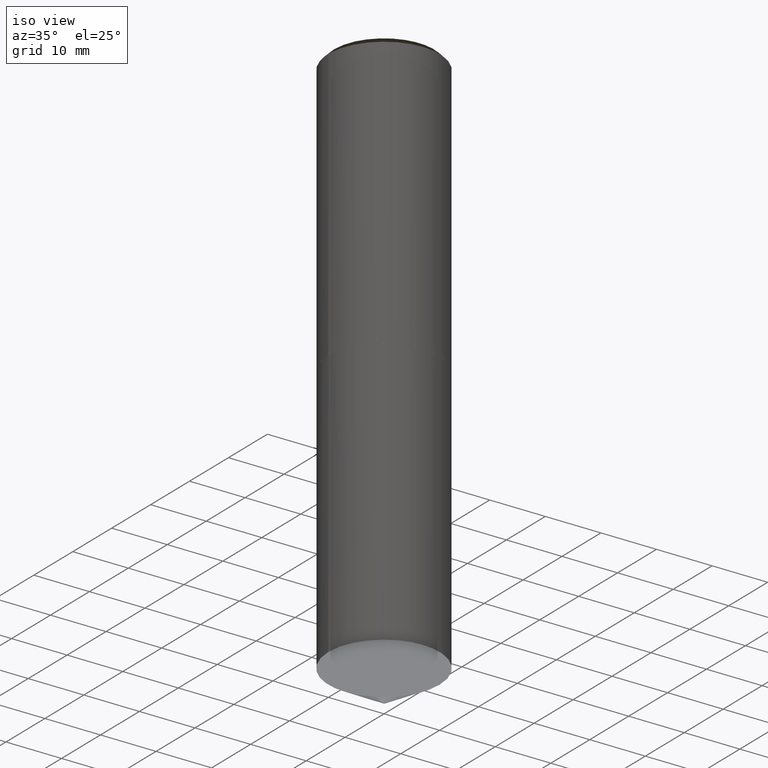
[diagram: clean part render]
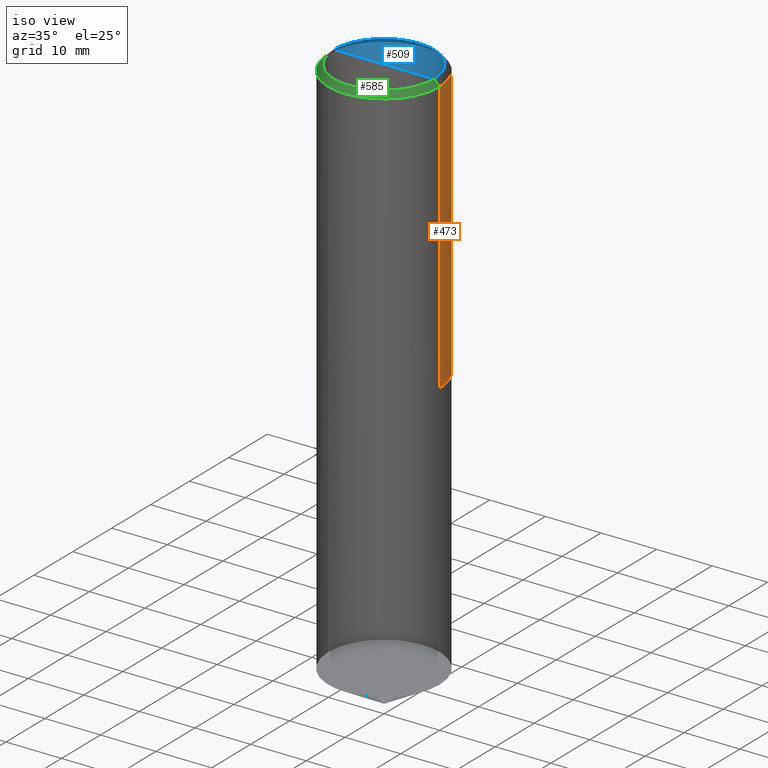
[diagram: same view with three faces highlighted in distinct colors, each labeled with its STEP entity id]
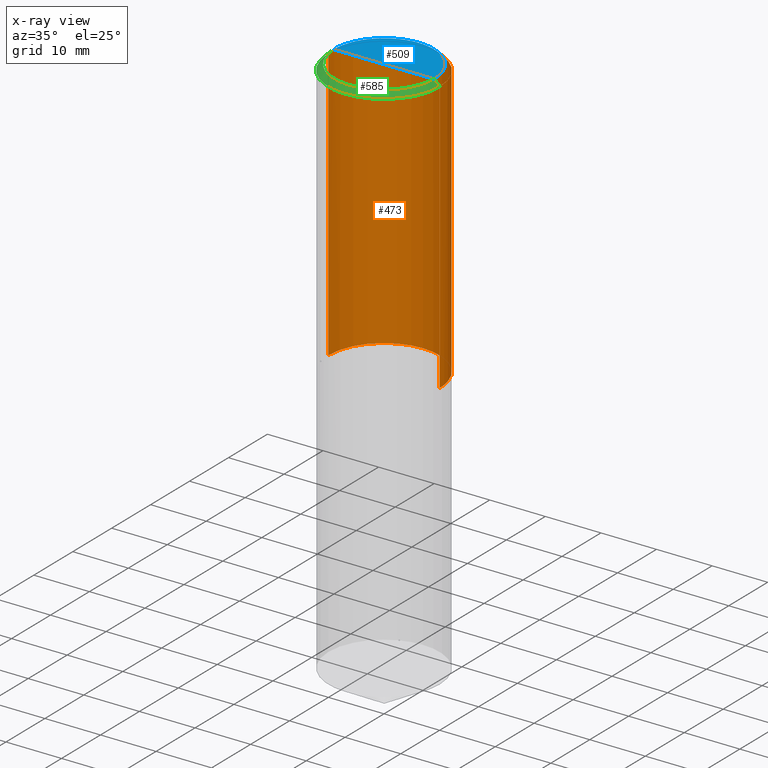
[diagram: x-ray of the same camera — body ghosted, the three highlighted faces saturated]
A machine part, iso view with three faces highlighted in distinct colors.
The next image is the same camera in x-ray (body ghosted, the three faces saturated) — at least one of them is partly hidden behind the body in this view.
Their STEP definitions:

[orange] entity #473 — the highlighted face is a freeform B-spline surface patch.
#278=CARTESIAN_POINT('',(10.0,0.0,0.0));
#279=CARTESIAN_POINT('',(10.0,10.0,0.0));
#280=CARTESIAN_POINT('',(0.0,10.0,0.0));
#281=CARTESIAN_POINT('',(-10.0,10.0,0.0));
#282=CARTESIAN_POINT('',(-10.0,0.0,0.0));
#283=CARTESIAN_POINT('',(10.0,0.0,49.0));
#284=CARTESIAN_POINT('',(10.0,10.0,49.0));
#285=CARTESIAN_POINT('',(0.0,10.0,49.0));
#286=CARTESIAN_POINT('',(-10.0,10.0,49.0));
#287=CARTESIAN_POINT('',(-10.0,0.0,49.0));
#454=(
BOUNDED_SURFACE()
B_SPLINE_SURFACE(1,2,(
(#278,#279,#280,#281,#282),
(#283,#284,#285,#286,#287)
), .UNSPECIFIED.,.F.,.F.,.F.)
B_SPLINE_SURFACE_WITH_KNOTS((2,2),(3,2,3),(
0.0,1.0),(
0.0,0.5,1.0), .UNSPECIFIED.)
GEOMETRIC_REPRESENTATION_ITEM()
RATIONAL_B_SPLINE_SURFACE(((1.0,0.707106781187,1.0,0.707106781187,1.0),
(1.0,0.707106781187,1.0,0.707106781187,1.0)
))
REPRESENTATION_ITEM('')
SURFACE()
);
#455=(
BOUNDED_CURVE()
B_SPLINE_CURVE(2,(#283,#284,#285,#286,#287),.UNSPECIFIED.,.F.,.F.)
B_SPLINE_CURVE_WITH_KNOTS((3,2,3),
(0.0,0.5,1.0),.UNSPECIFIED.)
CURVE()
GEOMETRIC_REPRESENTATION_ITEM()
RATIONAL_B_SPLINE_CURVE((1.0,0.707106781187,1.0,0.707106781187,1.0))
REPRESENTATION_ITEM('')
);
#456=(
BOUNDED_CURVE()
B_SPLINE_CURVE(1,(#287,#282),.UNSPECIFIED.,.F.,.F.)
B_SPLINE_CURVE_WITH_KNOTS((2,2),
(0.0,1.0),.UNSPECIFIED.)
CURVE()
GEOMETRIC_REPRESENTATION_ITEM()
RATIONAL_B_SPLINE_CURVE((1.0,1.0))
REPRESENTATION_ITEM('')
);
#457=(
BOUNDED_CURVE()
B_SPLINE_CURVE(2,(#282,#281,#280,#279,#278),.UNSPECIFIED.,.F.,.F.)
B_SPLINE_CURVE_WITH_KNOTS((3,2,3),
(0.0,0.5,1.0),.UNSPECIFIED.)
CURVE()
GEOMETRIC_REPRESENTATION_ITEM()
RATIONAL_B_SPLINE_CURVE((1.0,0.707106781187,1.0,0.707106781187,1.0))
REPRESENTATION_ITEM('')
);
#458=(
BOUNDED_CURVE()
B_SPLINE_CURVE(1,(#278,#283),.UNSPECIFIED.,.F.,.F.)
B_SPLINE_CURVE_WITH_KNOTS((2,2),
(0.0,1.0),.UNSPECIFIED.)
CURVE()
GEOMETRIC_REPRESENTATION_ITEM()
RATIONAL_B_SPLINE_CURVE((1.0,1.0))
REPRESENTATION_ITEM('')
);
#459=VERTEX_POINT('',#278);
#460=VERTEX_POINT('',#282);
#461=VERTEX_POINT('',#283);
#462=VERTEX_POINT('',#287);
#463=EDGE_CURVE('',#461,#462,#455,.T.);
#464=EDGE_CURVE('',#462,#460,#456,.T.);
#465=EDGE_CURVE('',#460,#459,#457,.T.);
#466=EDGE_CURVE('',#459,#461,#458,.T.);
#467=ORIENTED_EDGE('',*,*,#463,.T.);
#468=ORIENTED_EDGE('',*,*,#464,.T.);
#469=ORIENTED_EDGE('',*,*,#465,.T.);
#470=ORIENTED_EDGE('',*,*,#466,.T.);
#471=EDGE_LOOP('',(#467,#468,#469,#470));
#472=FACE_OUTER_BOUND('',#471,.T.);
#473=ADVANCED_FACE('',(#472),#454,.T.);

[blue] entity #509 — the highlighted face is a freeform B-spline surface patch.
#288=CARTESIAN_POINT('',(9.0,0.0,50.0));
#289=CARTESIAN_POINT('',(9.0,9.0,50.0));
#290=CARTESIAN_POINT('',(0.0,9.0,50.0));
#291=CARTESIAN_POINT('',(-9.0,9.0,50.0));
#292=CARTESIAN_POINT('',(-9.0,0.0,50.0));
#293=CARTESIAN_POINT('',(0.0,0.0,50.0));
#494=(
BOUNDED_SURFACE()
B_SPLINE_SURFACE(1,2,(
(#288,#289,#290,#291,#292),
(#293,#293,#293,#293,#293)
), .UNSPECIFIED.,.F.,.F.,.F.)
B_SPLINE_SURFACE_WITH_KNOTS((2,2),(3,2,3),(
0.0,1.0),(
0.0,0.5,1.0), .UNSPECIFIED.)
GEOMETRIC_REPRESENTATION_ITEM()
RATIONAL_B_SPLINE_SURFACE(((1.0,0.707106781187,1.0,0.707106781187,1.0),
(1.0,0.707106781187,1.0,0.707106781187,1.0)
))
REPRESENTATION_ITEM('')
SURFACE()
);
#495=(
BOUNDED_CURVE()
B_SPLINE_CURVE(1,(#293,#288),.UNSPECIFIED.,.F.,.F.)
B_SPLINE_CURVE_WITH_KNOTS((2,2),
(0.0,1.0),.UNSPECIFIED.)
CURVE()
GEOMETRIC_REPRESENTATION_ITEM()
RATIONAL_B_SPLINE_CURVE((1.0,1.0))
REPRESENTATION_ITEM('')
);
#496=(
BOUNDED_CURVE()
B_SPLINE_CURVE(2,(#288,#289,#290,#291,#292),.UNSPECIFIED.,.F.,.F.)
B_SPLINE_CURVE_WITH_KNOTS((3,2,3),
(0.0,0.5,1.0),.UNSPECIFIED.)
CURVE()
GEOMETRIC_REPRESENTATION_ITEM()
RATIONAL_B_SPLINE_CURVE((1.0,0.707106781187,1.0,0.707106781187,1.0))
REPRESENTATION_ITEM('')
);
#497=(
BOUNDED_CURVE()
B_SPLINE_CURVE(1,(#292,#293),.UNSPECIFIED.,.F.,.F.)
B_SPLINE_CURVE_WITH_KNOTS((2,2),
(0.0,1.0),.UNSPECIFIED.)
CURVE()
GEOMETRIC_REPRESENTATION_ITEM()
RATIONAL_B_SPLINE_CURVE((1.0,1.0))
REPRESENTATION_ITEM('')
);
#498=VERTEX_POINT('',#288);
#499=VERTEX_POINT('',#292);
#500=VERTEX_POINT('',#293);
#501=EDGE_CURVE('',#500,#498,#495,.T.);
#502=EDGE_CURVE('',#498,#499,#496,.T.);
#503=EDGE_CURVE('',#499,#500,#497,.T.);
#504=ORIENTED_EDGE('',*,*,#501,.T.);
#505=ORIENTED_EDGE('',*,*,#502,.T.);
#506=ORIENTED_EDGE('',*,*,#503,.T.);
#507=EDGE_LOOP('',(#504,#505,#506));
#508=FACE_OUTER_BOUND('',#507,.T.);
#509=ADVANCED_FACE('',(#508),#494,.T.);

[green] entity #585 — the highlighted face is a freeform B-spline surface patch.
#283=CARTESIAN_POINT('',(10.0,0.0,49.0));
#287=CARTESIAN_POINT('',(-10.0,0.0,49.0));
#288=CARTESIAN_POINT('',(9.0,0.0,50.0));
#292=CARTESIAN_POINT('',(-9.0,0.0,50.0));
#297=CARTESIAN_POINT('',(-10.0,-10.0,49.0));
#298=CARTESIAN_POINT('',(0.0,-10.0,49.0));
#299=CARTESIAN_POINT('',(10.0,-10.0,49.0));
#300=CARTESIAN_POINT('',(-9.0,-9.0,50.0));
#301=CARTESIAN_POINT('',(0.0,-9.0,50.0));
#302=CARTESIAN_POINT('',(9.0,-9.0,50.0));
#566=(
BOUNDED_SURFACE()
B_SPLINE_SURFACE(1,2,(
(#287,#297,#298,#299,#283),
(#292,#300,#301,#302,#288)
), .UNSPECIFIED.,.F.,.F.,.F.)
B_SPLINE_SURFACE_WITH_KNOTS((2,2),(3,2,3),(
0.0,1.0),(
0.0,0.5,1.0), .UNSPECIFIED.)
GEOMETRIC_REPRESENTATION_ITEM()
RATIONAL_B_SPLINE_SURFACE(((1.0,0.707106781187,1.0,0.707106781187,1.0),
(1.0,0.707106781187,1.0,0.707106781187,1.0)
))
REPRESENTATION_ITEM('')
SURFACE()
);
#567=(
BOUNDED_CURVE()
B_SPLINE_CURVE(2,(#292,#300,#301,#302,#288),.UNSPECIFIED.,.F.,.F.)
B_SPLINE_CURVE_WITH_KNOTS((3,2,3),
(0.0,0.5,1.0),.UNSPECIFIED.)
CURVE()
GEOMETRIC_REPRESENTATION_ITEM()
RATIONAL_B_SPLINE_CURVE((1.0,0.707106781187,1.0,0.707106781187,1.0))
REPRESENTATION_ITEM('')
);
#568=(
BOUNDED_CURVE()
B_SPLINE_CURVE(1,(#288,#283),.UNSPECIFIED.,.F.,.F.)
B_SPLINE_CURVE_WITH_KNOTS((2,2),
(0.0,1.0),.UNSPECIFIED.)
CURVE()
GEOMETRIC_REPRESENTATION_ITEM()
RATIONAL_B_SPLINE_CURVE((1.0,1.0))
REPRESENTATION_ITEM('')
);
#569=(
BOUNDED_CURVE()
B_SPLINE_CURVE(2,(#283,#299,#298,#297,#287),.UNSPECIFIED.,.F.,.F.)
B_SPLINE_CURVE_WITH_KNOTS((3,2,3),
(0.0,0.5,1.0),.UNSPECIFIED.)
CURVE()
GEOMETRIC_REPRESENTATION_ITEM()
RATIONAL_B_SPLINE_CURVE((1.0,0.707106781187,1.0,0.707106781187,1.0))
REPRESENTATION_ITEM('')
);
#570=(
BOUNDED_CURVE()
B_SPLINE_CURVE(1,(#287,#292),.UNSPECIFIED.,.F.,.F.)
B_SPLINE_CURVE_WITH_KNOTS((2,2),
(0.0,1.0),.UNSPECIFIED.)
CURVE()
GEOMETRIC_REPRESENTATION_ITEM()
RATIONAL_B_SPLINE_CURVE((1.0,1.0))
REPRESENTATION_ITEM('')
);
#571=VERTEX_POINT('',#283);
#572=VERTEX_POINT('',#287);
#573=VERTEX_POINT('',#288);
#574=VERTEX_POINT('',#292);
#575=EDGE_CURVE('',#574,#573,#567,.T.);
#576=EDGE_CURVE('',#573,#571,#568,.T.);
#577=EDGE_CURVE('',#571,#572,#569,.T.);
#578=EDGE_CURVE('',#572,#574,#570,.T.);
#579=ORIENTED_EDGE('',*,*,#575,.T.);
#580=ORIENTED_EDGE('',*,*,#576,.T.);
#581=ORIENTED_EDGE('',*,*,#577,.T.);
#582=ORIENTED_EDGE('',*,*,#578,.T.);
#583=EDGE_LOOP('',(#579,#580,#581,#582));
#584=FACE_OUTER_BOUND('',#583,.T.);
#585=ADVANCED_FACE('',(#584),#566,.T.);